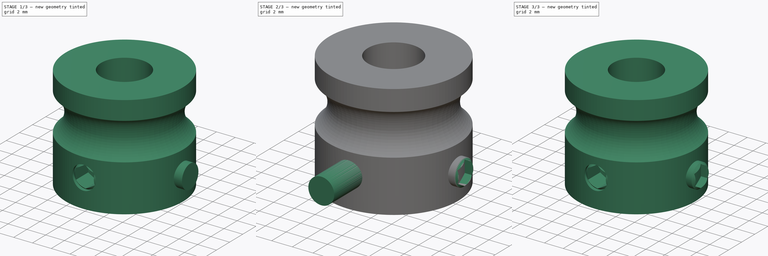
[diagram: build sequence overview — one tinted view per stage of 3, left to right]
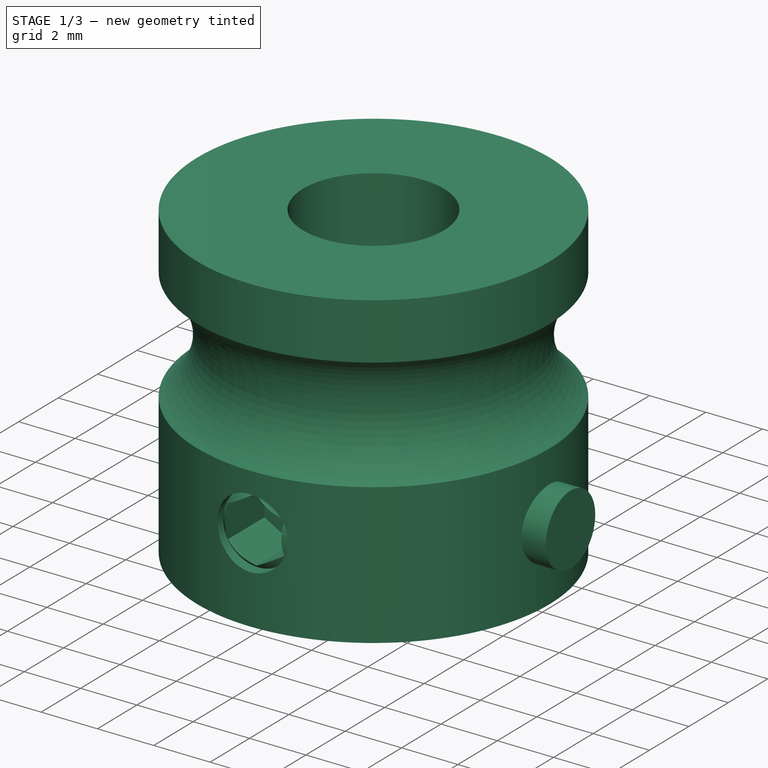
[diagram: stage 1 of 3 — iso view after this stage's code; geometry added in this stage tinted green]
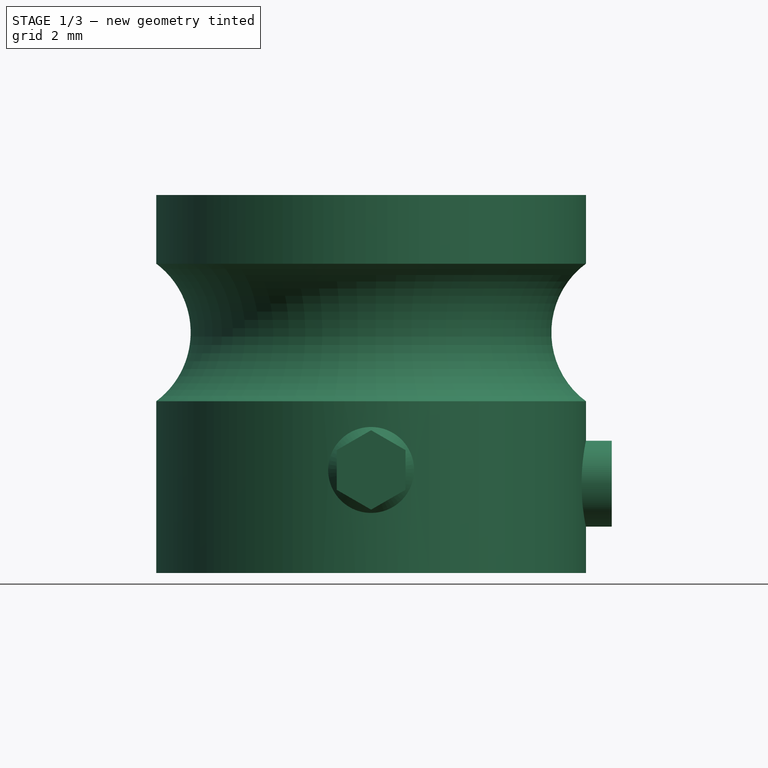
[diagram: stage 1 of 3 — front view after this stage's code; geometry added in this stage tinted green]
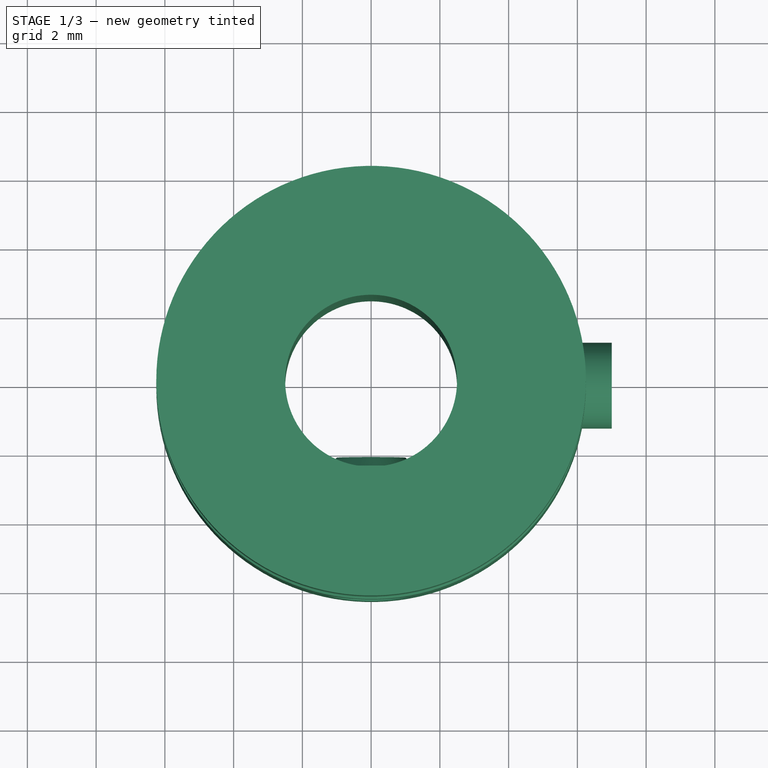
[diagram: stage 1 of 3 — top view after this stage's code; geometry added in this stage tinted green]
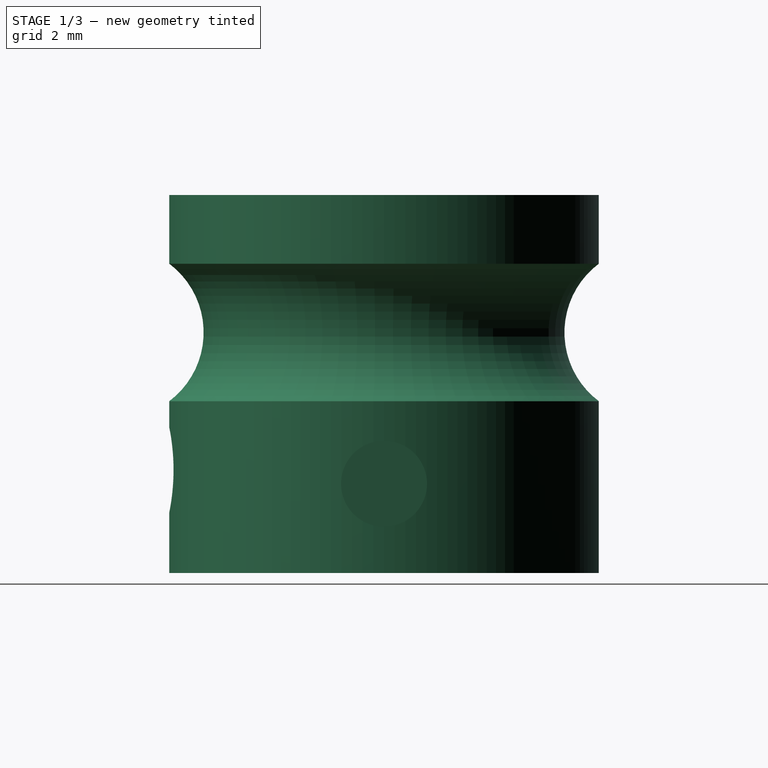
[diagram: stage 1 of 3 — right view after this stage's code; geometry added in this stage tinted green]
FCSTD DOCUMENT  (FreeCAD 0.14R3702 (Git))
Label: Extruder-drive-gear
License: CC-BY 3.0
LicenseURL: http://creativecommons.org/licenses/by/3.0/
objects: Part::Feature×3, Sketcher::SketchObject×2, Part::Cylinder×2, Part::Revolution×1, Part::Cut×1, Part::Chamfer×1, PartDesign::Pocket×1, App::DocumentObjectGroup×1, Part::Compound×1
note: 13 computed .brp shape members not serialized (recipe doc carries the construction recipe); baked Part::Feature solids carry a one-line shape summary decoded from their .brp

FEATURE [Part::Cylinder] Cylinder001  label="set-screw-body"
  Angle = 360
  Height = 4
  Placement = pos=(3,0,2.6) rot=(0,1,0;1.5708rad)
  Radius = 1.25
FEATURE [App::DocumentObjectGroup] Group  label="setscrew-src"
  Group = -> [Chamfer,Pocket]
FEATURE [Part::Feature] Cut001  label="Extruder-drive-gear-final"
  shape: bbox 12.5 x 12.5 x 11 mm, 7 faces (baked)
FEATURE [Part::Feature] Pocket001  label="setscrew001"
  Placement = pos=(0,0.9,0.4) rot=(0,0,-1;1.5708rad)
  shape: bbox 2.5 x 4 x 2.5 mm, 11 faces (baked)
FEATURE [Part::Compound] Compound  label="Extruder-drive-gear-with-setscrew"
  Links = -> [Cut001,Pocket001]
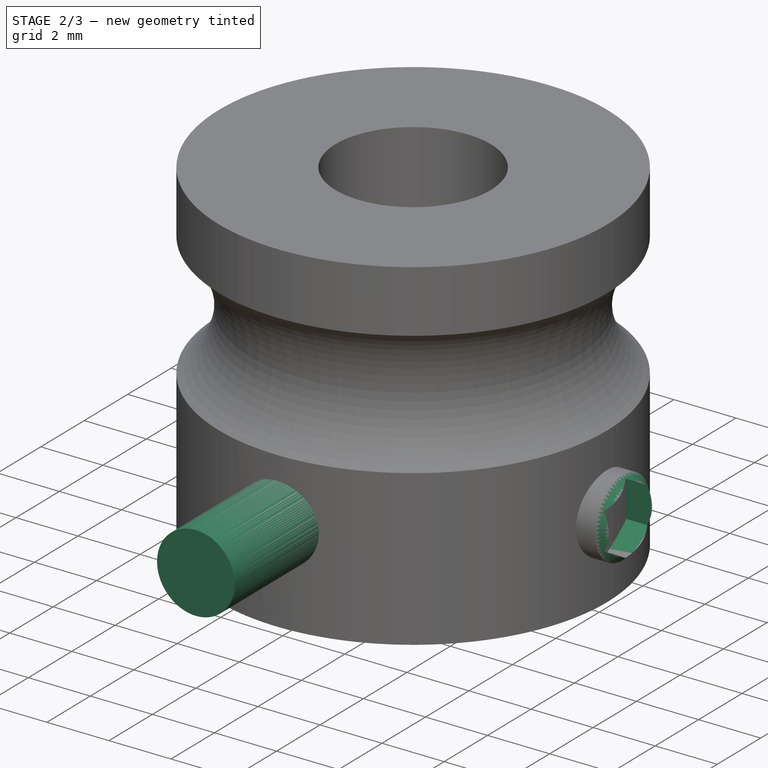
[diagram: stage 2 of 3 — iso view after this stage's code; geometry added in this stage tinted green]
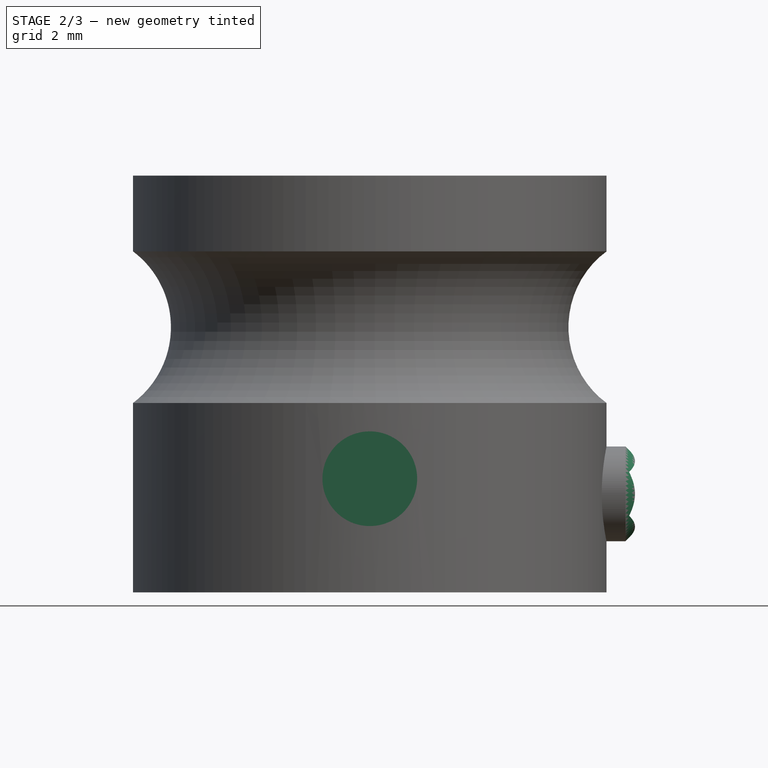
[diagram: stage 2 of 3 — front view after this stage's code; geometry added in this stage tinted green]
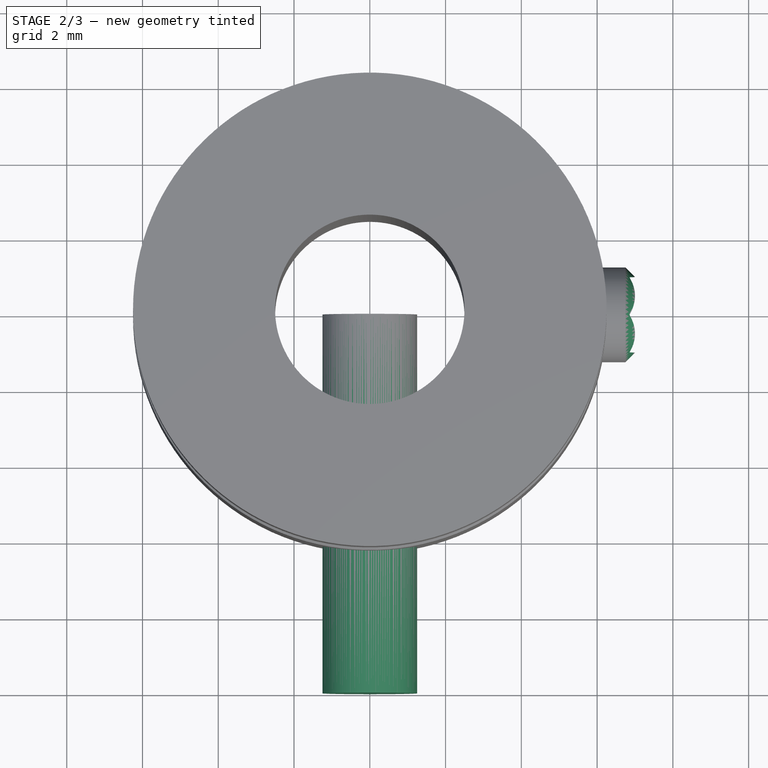
[diagram: stage 2 of 3 — top view after this stage's code; geometry added in this stage tinted green]
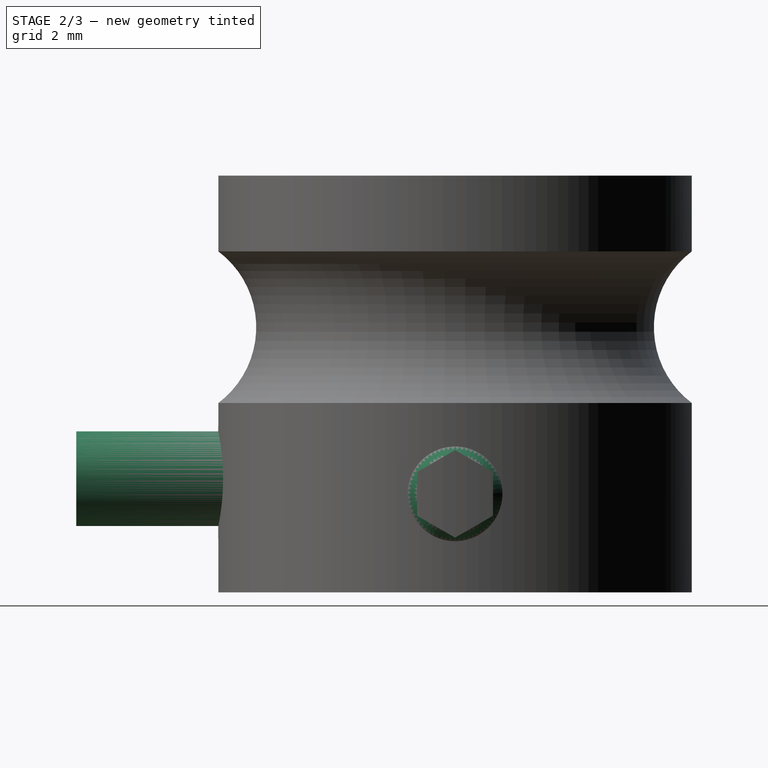
[diagram: stage 2 of 3 — right view after this stage's code; geometry added in this stage tinted green]
FEATURE [Part::Cylinder] Cylinder  label="setscrew-drill"
  Angle = 360
  Height = 10
  Placement = pos=(0,0,3) rot=(1,0,0;1.5708rad)
  Radius = 1.25
FEATURE [Part::Chamfer] Chamfer
  Base = -> Cylinder001
  Edges = 2 edges r=0.25: [Edge1,Edge3]
FEATURE [Sketcher::SketchObject] Sketch001  label="setscrew-pentagon"
  ExternalGeometry = -> [Chamfer]
  Placement = pos=(7,0,0) rot=(0.57735,0.57735,0.57735;2.0944rad)
  Support = -> Chamfer [Face5]
  sketch-geometry (9):
    g0: LineSegment StartX=-1 StartY=3.17735 StartZ=0 EndX=0 EndY=3.7547 EndZ=0
    g1: LineSegment StartX=0 StartY=3.7547 StartZ=0 EndX=1 EndY=3.17735 EndZ=0
    g2: LineSegment StartX=1 StartY=3.17735 StartZ=0 EndX=1 EndY=2.02265 EndZ=0
    g3: LineSegment StartX=1 StartY=2.02265 StartZ=0 EndX=0 EndY=1.4453 EndZ=0
    g4: LineSegment StartX=0 StartY=1.4453 StartZ=0 EndX=-1 EndY=2.02265 EndZ=0
    g5: LineSegment StartX=-1 StartY=2.02265 StartZ=0 EndX=-1 EndY=3.17735 EndZ=0
    g6: LineSegment [constr] StartX=0 StartY=2.6 StartZ=0 EndX=0 EndY=3.7547 EndZ=0
    g7: LineSegment [constr] StartX=0 StartY=2.6 StartZ=0 EndX=0 EndY=1.4453 EndZ=0
    g8: LineSegment [constr] StartX=0 StartY=2.6 StartZ=0 EndX=-1 EndY=3.17735 EndZ=0
  constraints (24):
    c: Coincident(g0,g1)
    c: Coincident(g1,g2)
    c: Coincident(g2,g3)
    c: Coincident(g3,g4)
    c: Coincident(g4,g5)
    c: Coincident(g5,g0)
    c: Vertical(g5)
    c: Vertical(g2)
    c: Equal(g0,g1)
    c: Equal(g1,g2)
    c: Equal(g2,g3)
    c: Equal(g3,g4)
    c: Equal(g4,g5)
    c: Coincident(g8,g6)
    c: Coincident(g8,g7)
    c: Coincident(g8,g0)
    c: Coincident(g6,g0)
    c: Coincident(g7,g3)
    c: Equal(g6,g8)
    c: Equal(g8,g7)
    c: Vertical(g6)
    c: Vertical(g7)
    c: DistanceX(g4,g2) = 2
    c: Coincident(g6,g-3)
FEATURE [PartDesign::Pocket] Pocket  label="setscrew"
  Length = 2
  Sketch = -> Sketch001
  Type = 0
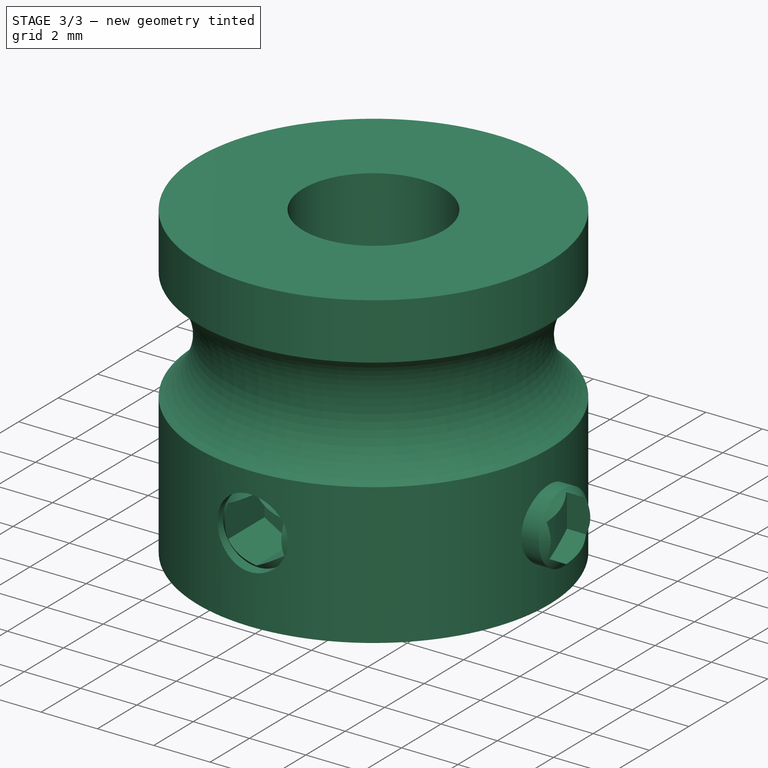
[diagram: stage 3 of 3 — iso view after this stage's code; geometry added in this stage tinted green]
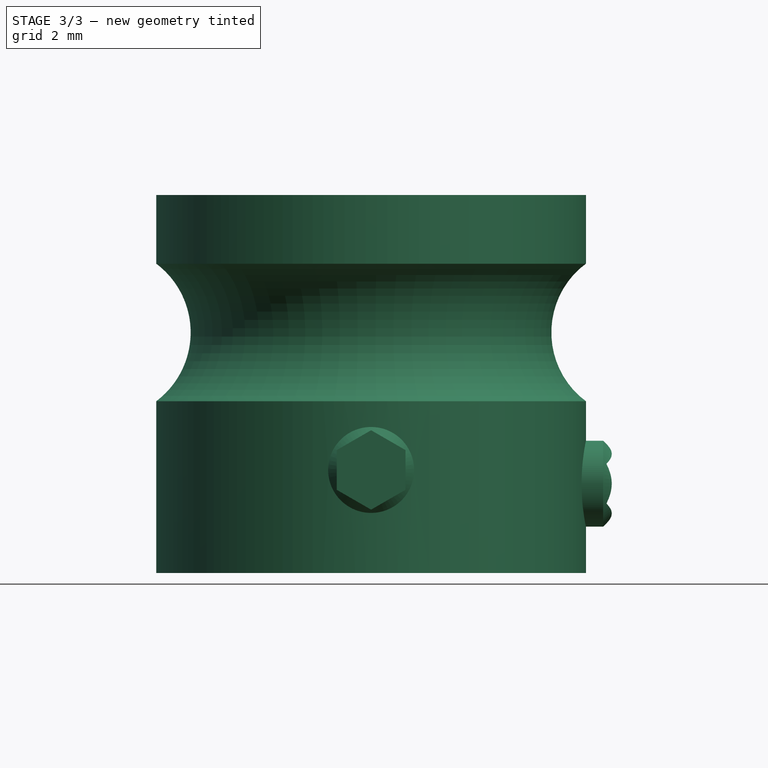
[diagram: stage 3 of 3 — front view after this stage's code; geometry added in this stage tinted green]
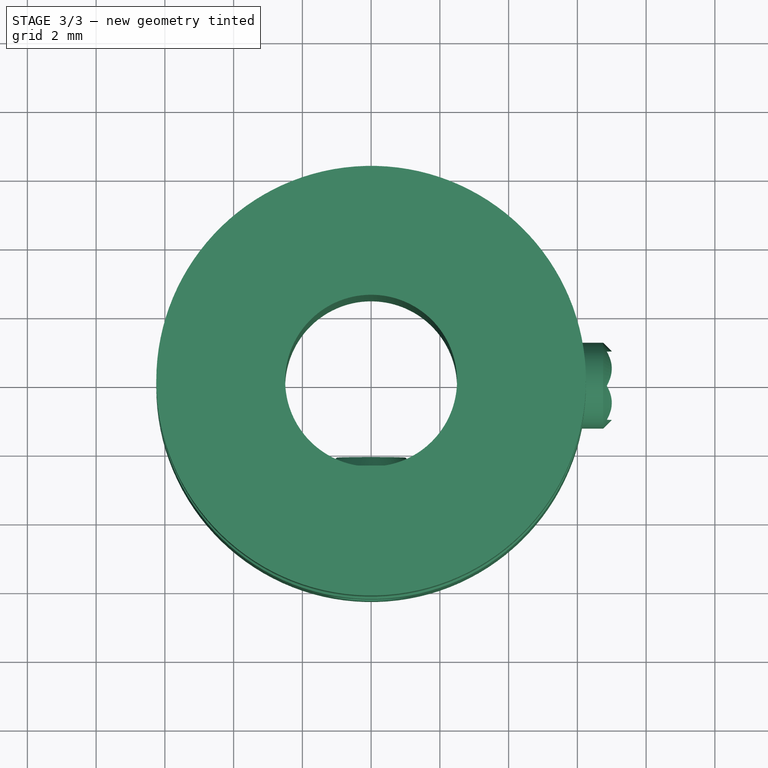
[diagram: stage 3 of 3 — top view after this stage's code; geometry added in this stage tinted green]
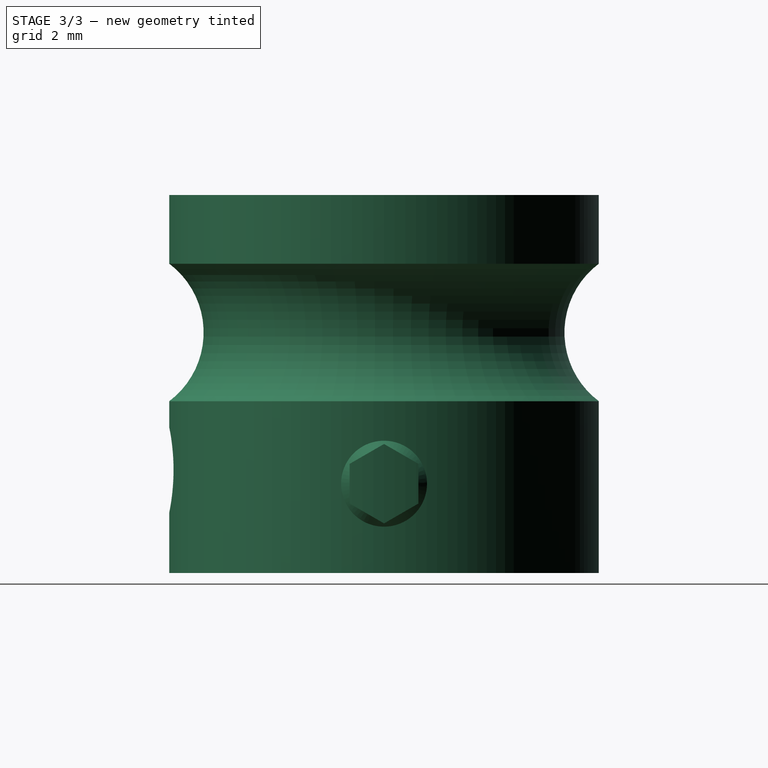
[diagram: stage 3 of 3 — right view after this stage's code; geometry added in this stage tinted green]
FEATURE [Part::Feature] Part__Feature  label="Extruder_drive-gear"
  Placement = pos=(0,0,0) rot=(0,-1,0;1.5708rad)
  shape: bbox 12.5 x 12.5 x 11 mm, 7 faces (baked)
FEATURE [Sketcher::SketchObject] Sketch  label="main-body-sketch"
  Placement = pos=(0,0,0) rot=(1,0,0;1.5708rad)
  sketch-geometry (7):
    g0: LineSegment StartX=-6.25 StartY=5 StartZ=0 EndX=-6.25 EndY=0 EndZ=0
    g1: LineSegment StartX=-6.25 StartY=0 StartZ=0 EndX=-2.5 EndY=0 EndZ=0
    g2: LineSegment StartX=-2.5 StartY=0 StartZ=0 EndX=-2.5 EndY=11 EndZ=0
    g3: LineSegment StartX=-2.5 StartY=11 StartZ=0 EndX=-6.25 EndY=11 EndZ=0
    g4: LineSegment StartX=-6.25 StartY=11 StartZ=0 EndX=-6.25 EndY=9 EndZ=0
    g5: ArcOfCircle CenterX=-7.75 CenterY=7 CenterZ=0 NormalX=0 NormalY=0 NormalZ=1 Radius=2.5 StartAngle=5.35589 EndAngle=7.21048
    g6: LineSegment [constr] StartX=-6.25 StartY=7 StartZ=0 EndX=-5.25 EndY=7 EndZ=0
  constraints (24):
    c: Vertical(g0)
    c: Coincident(g0,g1)
    c: Horizontal(g1)
    c: Coincident(g1,g2)
    c: Vertical(g2)
    c: Coincident(g2,g3)
    c: Horizontal(g3)
    c: Coincident(g3,g4)
    c: Vertical(g4)
    c: PointOnObject(g0,g-1)
    c: DistanceY(g2) = 11
    c: DistanceX(g3) = -3.75
    c: DistanceY(g4) = -2
    c: Equal(g1,g3)
    c: Equal(g3,g1)
    c: DistanceY(g0) = -5
    c: DistanceX(g-1,g1) = -2.5
    c: Coincident(g4,g5)
    c: Coincident(g0,g5)
    c: Horizontal(g6)
    c: PointOnObject(g6,g0)
    c: PointOnObject(g6,g5)
    c: PointOnObject(g5,g6)
    c: DistanceX(g6) = 1
FEATURE [Part::Revolution] Revolve  label="main-body"
  Angle = 360
  Axis = (0,0,1)
  Base = (0,0,0)
  Solid = true
  Source = -> Sketch
FEATURE [Part::Cut] Cut  label="extruder-drive-gear"
  Base = -> Revolve
  Tool = -> Cylinder
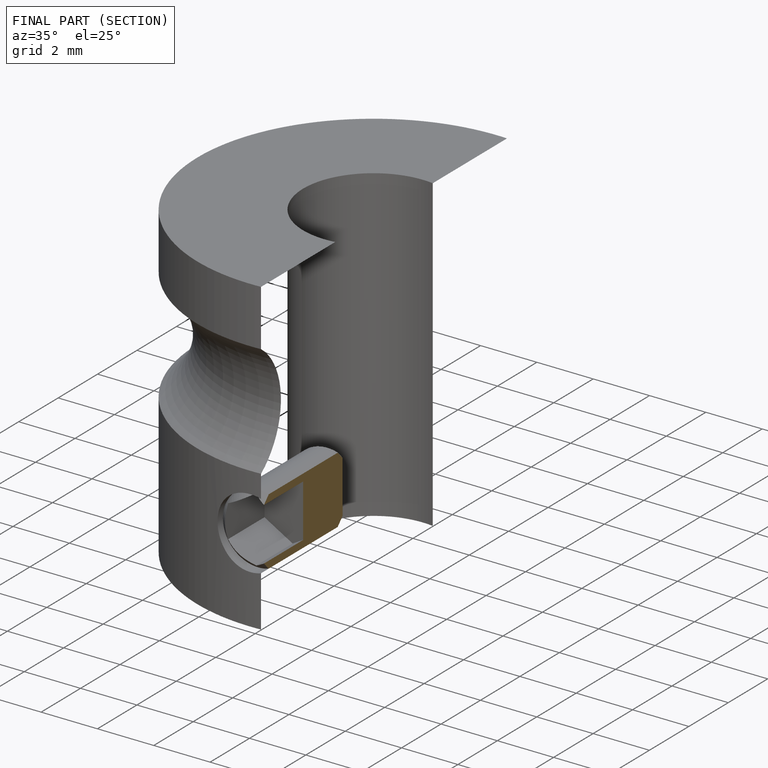
[diagram: finished part — half-section view (interior)]
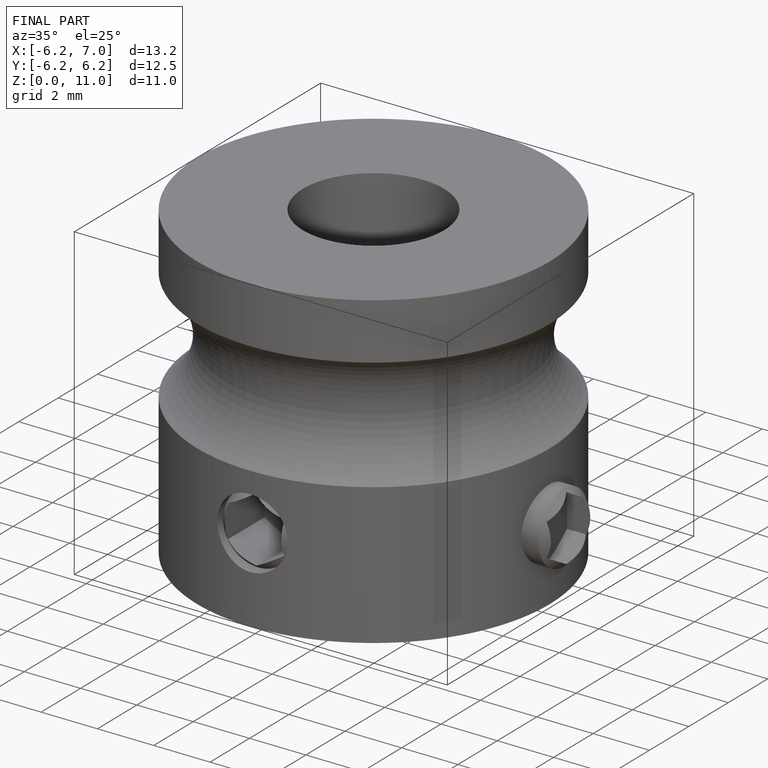
[diagram: finished part — iso view with bounding-box wireframe]
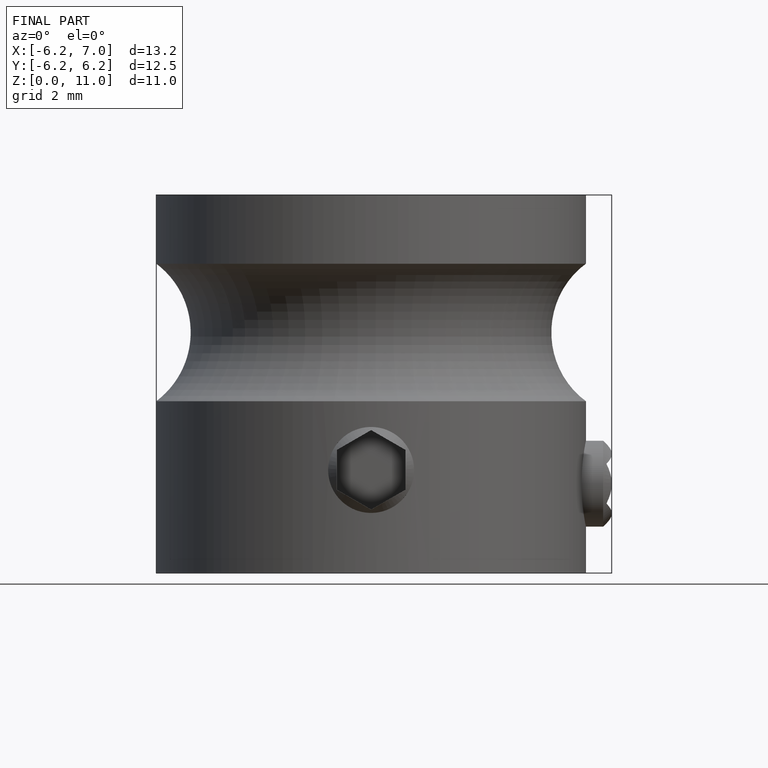
[diagram: finished part — front view with bounding-box wireframe]
